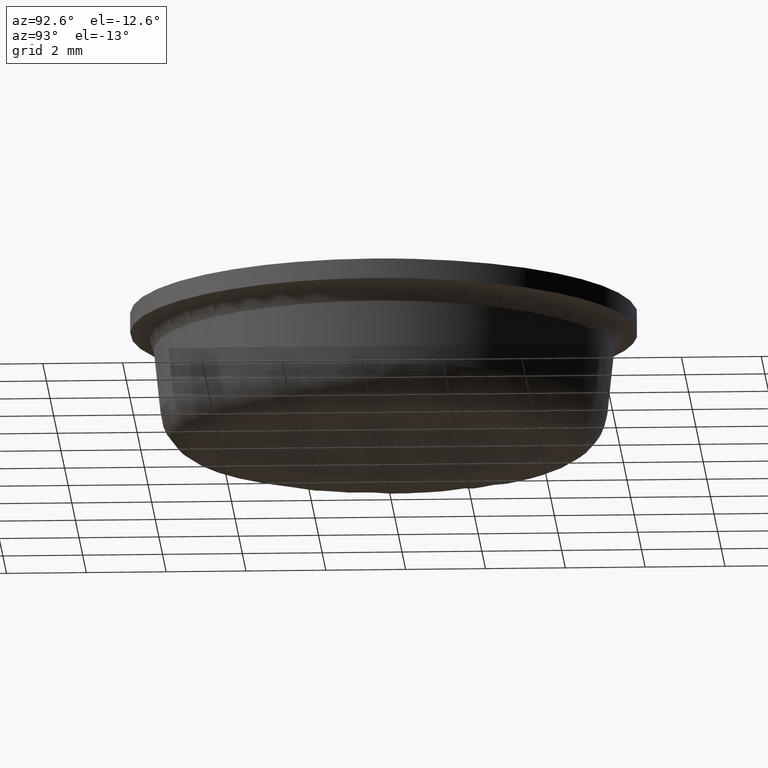
[diagram: clean part render]
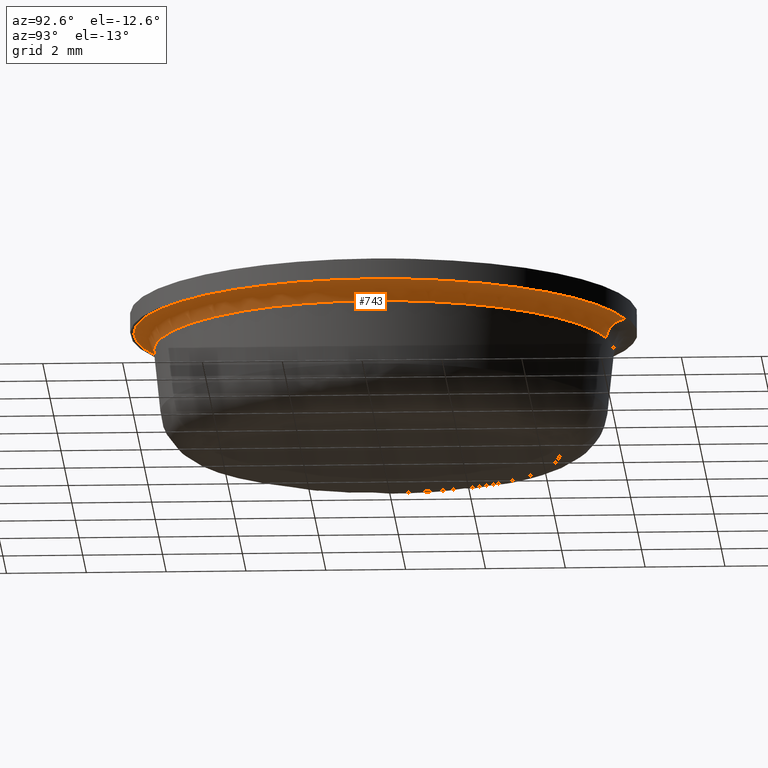
[diagram: same view with one face highlighted and labeled with its STEP entity id]
A machine part, auxiliary view. The second image highlights one B-rep face of the part: STEP entity #743.
In plain terms, the highlighted face is a freeform B-spline surface patch.
Its self-contained STEP definition (entity closure, byte-faithful):
#263=CARTESIAN_POINT('',(0.452221912391857,-5.746024204986665,2.652264231634147));
#264=VERTEX_POINT('',#263);
#270=CARTESIAN_POINT('',(-5.359545755899575,-2.120511014295906,2.652263281644852));
#271=VERTEX_POINT('',#270);
#272=CARTESIAN_POINT('',(0.452221912391857,-5.746024204986665,2.652264231634146));
#273=CARTESIAN_POINT('',(0.226460006509275,-5.763792052315869,2.652264231633806));
#274=CARTESIAN_POINT('',(0.0,-5.763792052315869,2.652264231633805));
#275=CARTESIAN_POINT('',(-3.918077141644606,-5.763792052315869,2.652264231633805));
#276=CARTESIAN_POINT('',(-5.359545755899575,-2.120511014295907,2.652263281644852));
#284=(BOUNDED_CURVE()B_SPLINE_CURVE(2,(#272,#273,#274,#275,#276),.UNSPECIFIED.,.F.,.U.)B_SPLINE_CURVE_WITH_KNOTS((3,2,3),(0.736331300632539,0.750000000000000,0.937532601614025),.UNSPECIFIED.)CURVE()GEOMETRIC_REPRESENTATION_ITEM()RATIONAL_B_SPLINE_CURVE((0.969723356171341,0.983986122581084,1.0,0.780291890723230,0.890203248073429))REPRESENTATION_ITEM(''));
#285=EDGE_CURVE('',#264,#271,#284,.T.);
#337=CARTESIAN_POINT('',(-5.763792052315869,0.0,2.652264231633805));
#338=VERTEX_POINT('',#337);
#339=CARTESIAN_POINT('',(-5.359545755899575,-2.120511014295907,2.652263281644852));
#340=CARTESIAN_POINT('',(-5.763792052315869,-1.098787508883521,2.652264231633805));
#341=CARTESIAN_POINT('',(-5.763792052315869,0.0,2.652264231633805));
#349=(BOUNDED_CURVE()B_SPLINE_CURVE(2,(#339,#340,#341),.UNSPECIFIED.,.F.,.U.)B_SPLINE_CURVE_WITH_KNOTS((3,3),(0.937532601614025,1.0),.UNSPECIFIED.)CURVE()GEOMETRIC_REPRESENTATION_ITEM()RATIONAL_B_SPLINE_CURVE((0.890203248073429,0.926814890463318,1.0))REPRESENTATION_ITEM(''));
#350=EDGE_CURVE('',#271,#338,#349,.T.);
#352=CARTESIAN_POINT('',(-5.734690764123986,0.578464054420458,2.652264231671762));
#353=VERTEX_POINT('',#352);
#354=CARTESIAN_POINT('',(-5.763792052315869,0.0,2.652264231633805));
#355=CARTESIAN_POINT('',(-5.763792052315870,0.289964038966353,2.652264231633805));
#356=CARTESIAN_POINT('',(-5.734690764123987,0.578464054420459,2.652264231671762));
#364=(BOUNDED_CURVE()B_SPLINE_CURVE(2,(#354,#355,#356),.UNSPECIFIED.,.F.,.U.)B_SPLINE_CURVE_WITH_KNOTS((3,3),(0.0,0.017423441082362),.UNSPECIFIED.)CURVE()GEOMETRIC_REPRESENTATION_ITEM()RATIONAL_B_SPLINE_CURVE((1.0,0.979587169034322,0.962019632129881))REPRESENTATION_ITEM(''));
#365=EDGE_CURVE('',#338,#353,#364,.T.);
#367=CARTESIAN_POINT('',(1.236746727380552,5.629543174600428,2.652264231664552));
#368=VERTEX_POINT('',#367);
#384=CARTESIAN_POINT('',(5.763792052315869,0.0,2.652264231633805));
#385=VERTEX_POINT('',#384);
#386=CARTESIAN_POINT('',(1.236746727380552,5.629543174600428,2.652264231664551));
#387=CARTESIAN_POINT('',(5.763792052315870,4.635002708936676,2.652264231633806));
#388=CARTESIAN_POINT('',(5.763792052315869,0.0,2.652264231633805));
#396=(BOUNDED_CURVE()B_SPLINE_CURVE(2,(#386,#387,#388),.UNSPECIFIED.,.F.,.U.)B_SPLINE_CURVE_WITH_KNOTS((3,3),(0.286726879777792,0.500000000000000),.UNSPECIFIED.)CURVE()GEOMETRIC_REPRESENTATION_ITEM()RATIONAL_B_SPLINE_CURVE((0.926585904689183,0.750134997326917,1.0))REPRESENTATION_ITEM(''));
#397=EDGE_CURVE('',#368,#385,#396,.T.);
#399=CARTESIAN_POINT('',(5.763792052315869,0.0,2.652264231633805));
#400=CARTESIAN_POINT('',(5.763792052315871,-5.327994569048848,2.652264231633806));
#401=CARTESIAN_POINT('',(0.452221912391857,-5.746024204986665,2.652264231634146));
#409=(BOUNDED_CURVE()B_SPLINE_CURVE(2,(#399,#400,#401),.UNSPECIFIED.,.F.,.U.)B_SPLINE_CURVE_WITH_KNOTS((3,3),(0.500000000000000,0.736331300632540),.UNSPECIFIED.)CURVE()GEOMETRIC_REPRESENTATION_ITEM()RATIONAL_B_SPLINE_CURVE((1.0,0.723120658605463,0.969723356171341))REPRESENTATION_ITEM(''));
#410=EDGE_CURVE('',#385,#264,#409,.T.);
#632=CARTESIAN_POINT('',(1.236239974449566,5.627236487682398,2.619422022637136));
#633=CARTESIAN_POINT('',(6.247247365321300,4.526375050204547,2.619422022637136));
#634=CARTESIAN_POINT('',(5.732340993324153,-0.578227030660687,2.619422022637137));
#635=CARTESIAN_POINT('',(5.154113962663465,-6.310568023984838,2.619422022637136));
#636=CARTESIAN_POINT('',(-0.578227030660687,-5.732340993324153,2.619422022637137));
#637=CARTESIAN_POINT('',(-6.310568023984838,-5.154113962663465,2.619422022637136));
#638=CARTESIAN_POINT('',(-5.732340993324153,0.578227030660686,2.619422022637137));
#639=CARTESIAN_POINT('',(1.240522452283565,5.646729883805510,3.132839104456910));
#640=CARTESIAN_POINT('',(6.268888550623861,4.542054935357506,3.132839104456911));
#641=CARTESIAN_POINT('',(5.752198483575400,-0.580230075775715,3.132839104456911));
#642=CARTESIAN_POINT('',(5.171968407799685,-6.332428559351114,3.132839104456910));
#643=CARTESIAN_POINT('',(-0.580230075775715,-5.752198483575400,3.132839104456911));
#644=CARTESIAN_POINT('',(-6.332428559351114,-5.171968407799685,3.132839104456910));
#645=CARTESIAN_POINT('',(-5.752198483575400,0.580230075775714,3.132839104456911));
#646=CARTESIAN_POINT('',(1.350529782277533,6.147471870837759,3.098908560934358));
#647=CARTESIAN_POINT('',(6.824802464325640,4.944836307999997,3.098908560934358));
#648=CARTESIAN_POINT('',(6.262293238900985,-0.631683849386008,3.098908560934358));
#649=CARTESIAN_POINT('',(5.630609389514977,-6.893977088286992,3.098908560934358));
#650=CARTESIAN_POINT('',(-0.631683849386007,-6.262293238900985,3.098908560934358));
#651=CARTESIAN_POINT('',(-6.893977088286992,-5.630609389514977,3.098908560934358));
#652=CARTESIAN_POINT('',(-6.262293238900985,0.631683849386007,3.098908560934358));
#660=(BOUNDED_SURFACE()B_SPLINE_SURFACE(2,2,((#632,#639,#646),(#633,#640,#647),(#634,#641,#648),(#635,#642,#649),(#636,#643,#650),(#637,#644,#651),(#638,#645,#652)),.UNSPECIFIED.,.F.,.F.,.U.)B_SPLINE_SURFACE_WITH_KNOTS((3,2,2,3),(3,3),(0.0,9.594090993792781,20.022450769654501,30.450810545516219),(0.0,0.844423926844347),.UNSPECIFIED.)GEOMETRIC_REPRESENTATION_ITEM()RATIONAL_B_SPLINE_SURFACE(((0.875928188481716,0.609833063903043,0.872916459281533),(0.668730608448724,0.465579303461980,0.666431292674891),(0.915394394202286,0.637309970653722,0.912246967206608),(0.647281583600588,0.450646201967046,0.645056016628655),(0.915394394202286,0.637309970653722,0.912246967206608),(0.647281583600588,0.450646201967046,0.645056016628655),(0.915394394202286,0.637309970653722,0.912246967206608)))REPRESENTATION_ITEM('')SURFACE());
#661=ORIENTED_EDGE('',*,*,#397,.F.);
#662=CARTESIAN_POINT('',(1.343444860132220,6.115222038036646,3.100000000000000));
#663=VERTEX_POINT('',#662);
#664=CARTESIAN_POINT('',(1.236746727380552,5.629543174600429,2.652264231664552));
#665=CARTESIAN_POINT('',(1.246844241593509,5.675506014821819,3.099999999697390));
#666=CARTESIAN_POINT('',(1.343444860132220,6.115222038036647,3.100000000000000));
#674=(BOUNDED_CURVE()B_SPLINE_CURVE(2,(#664,#665,#666),.UNSPECIFIED.,.F.,.U.)B_SPLINE_CURVE_WITH_KNOTS((3,3),(-1.718039705907243,-0.290894268543246),.UNSPECIFIED.)CURVE()GEOMETRIC_REPRESENTATION_ITEM()RATIONAL_B_SPLINE_CURVE((0.852850985361340,0.632773523748846,0.850112743446584))REPRESENTATION_ITEM(''));
#675=EDGE_CURVE('',#368,#663,#674,.T.);
#676=ORIENTED_EDGE('',*,*,#675,.T.);
#677=CARTESIAN_POINT('',(6.261053000000000,0.0,3.100000000000000));
#678=VERTEX_POINT('',#677);
#679=CARTESIAN_POINT('',(1.343444860132220,6.115222038036646,3.100000000000000));
#680=CARTESIAN_POINT('',(6.261052999999999,5.034879355863245,3.100000000000000));
#681=CARTESIAN_POINT('',(6.261053000000000,0.0,3.100000000000000));
#689=(BOUNDED_CURVE()B_SPLINE_CURVE(2,(#679,#680,#681),.UNSPECIFIED.,.F.,.U.)B_SPLINE_CURVE_WITH_KNOTS((3,3),(0.286726879778356,0.500000000000000),.UNSPECIFIED.)CURVE()GEOMETRIC_REPRESENTATION_ITEM()RATIONAL_B_SPLINE_CURVE((0.926585904688250,0.750134997327577,1.0))REPRESENTATION_ITEM(''));
#690=EDGE_CURVE('',#663,#678,#689,.T.);
#691=ORIENTED_EDGE('',*,*,#690,.T.);
#692=CARTESIAN_POINT('',(-6.261053000000000,0.0,3.100000000000000));
#693=VERTEX_POINT('',#692);
#694=CARTESIAN_POINT('',(6.261053000000000,0.0,3.100000000000000));
#695=CARTESIAN_POINT('',(6.261052999999999,-6.261052999999999,3.100000000000000));
#696=CARTESIAN_POINT('',(0.0,-6.261053000000000,3.100000000000000));
#697=CARTESIAN_POINT('',(-6.261052999999999,-6.261052999999999,3.100000000000000));
#698=CARTESIAN_POINT('',(-6.261053000000000,0.0,3.100000000000000));
#706=(BOUNDED_CURVE()B_SPLINE_CURVE(2,(#694,#695,#696,#697,#698),.UNSPECIFIED.,.F.,.U.)B_SPLINE_CURVE_WITH_KNOTS((3,2,3),(0.500000000000000,0.750000000000000,1.0),.UNSPECIFIED.)CURVE()GEOMETRIC_REPRESENTATION_ITEM()RATIONAL_B_SPLINE_CURVE((1.0,0.707106781186547,1.0,0.707106781186547,1.0))REPRESENTATION_ITEM(''));
#707=EDGE_CURVE('',#678,#693,#706,.T.);
#708=ORIENTED_EDGE('',*,*,#707,.T.);
#709=CARTESIAN_POINT('',(-6.229441049698107,0.628370015851528,3.100000000000000));
#710=VERTEX_POINT('',#709);
#711=CARTESIAN_POINT('',(-6.261053000000000,0.0,3.100000000000000));
#712=CARTESIAN_POINT('',(-6.261053000000000,0.314980172698542,3.100000000000000));
#713=CARTESIAN_POINT('',(-6.229441049698107,0.628370015851528,3.100000000000001));
#721=(BOUNDED_CURVE()B_SPLINE_CURVE(2,(#711,#712,#713),.UNSPECIFIED.,.F.,.U.)B_SPLINE_CURVE_WITH_KNOTS((3,3),(0.0,0.017423441082123),.UNSPECIFIED.)CURVE()GEOMETRIC_REPRESENTATION_ITEM()RATIONAL_B_SPLINE_CURVE((1.0,0.979587169034602,0.962019632130364))REPRESENTATION_ITEM(''));
#722=EDGE_CURVE('',#693,#710,#721,.T.);
#723=ORIENTED_EDGE('',*,*,#722,.T.);
#724=CARTESIAN_POINT('',(-5.734690764123986,0.578464054420458,2.652264231671763));
#725=CARTESIAN_POINT('',(-5.781512090003582,0.583186968888436,3.099999999953422));
#726=CARTESIAN_POINT('',(-6.229441049698107,0.628370015851528,3.100000000000000));
#734=(BOUNDED_CURVE()B_SPLINE_CURVE(2,(#724,#725,#726),.UNSPECIFIED.,.F.,.U.)B_SPLINE_CURVE_WITH_KNOTS((3,3),(-1.718039705876264,-0.290894267937744),.UNSPECIFIED.)CURVE()GEOMETRIC_REPRESENTATION_ITEM()RATIONAL_B_SPLINE_CURVE((0.891277414458065,0.661284045855612,0.888415797313951))REPRESENTATION_ITEM(''));
#735=EDGE_CURVE('',#353,#710,#734,.T.);
#736=ORIENTED_EDGE('',*,*,#735,.F.);
#737=ORIENTED_EDGE('',*,*,#365,.F.);
#738=ORIENTED_EDGE('',*,*,#350,.F.);
#739=ORIENTED_EDGE('',*,*,#285,.F.);
#740=ORIENTED_EDGE('',*,*,#410,.F.);
#741=EDGE_LOOP('',(#661,#676,#691,#708,#723,#736,#737,#738,#739,#740));
#742=FACE_OUTER_BOUND('',#741,.T.);
#743=ADVANCED_FACE('',(#742),#660,.F.);